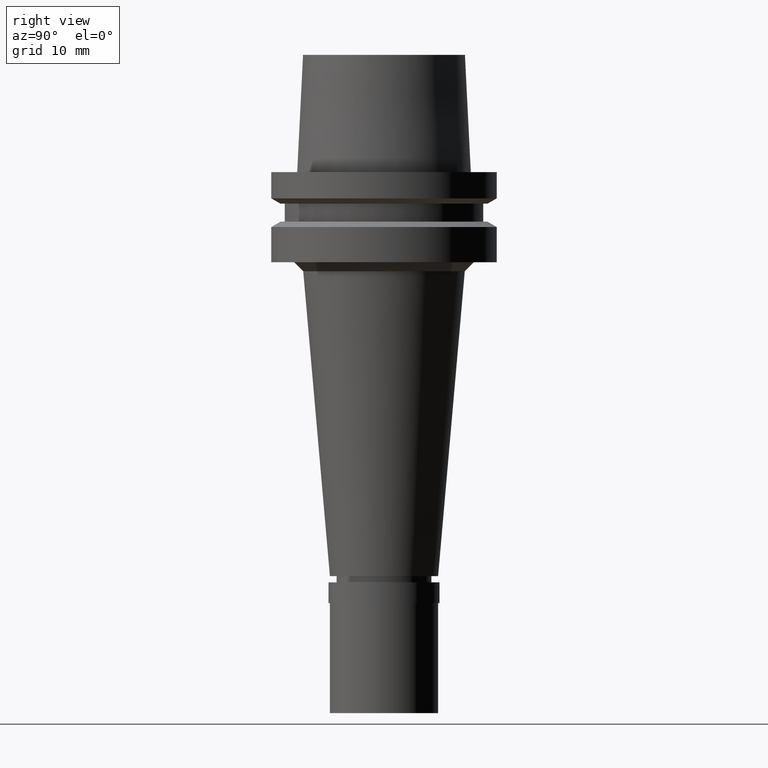
[diagram: clean part render]
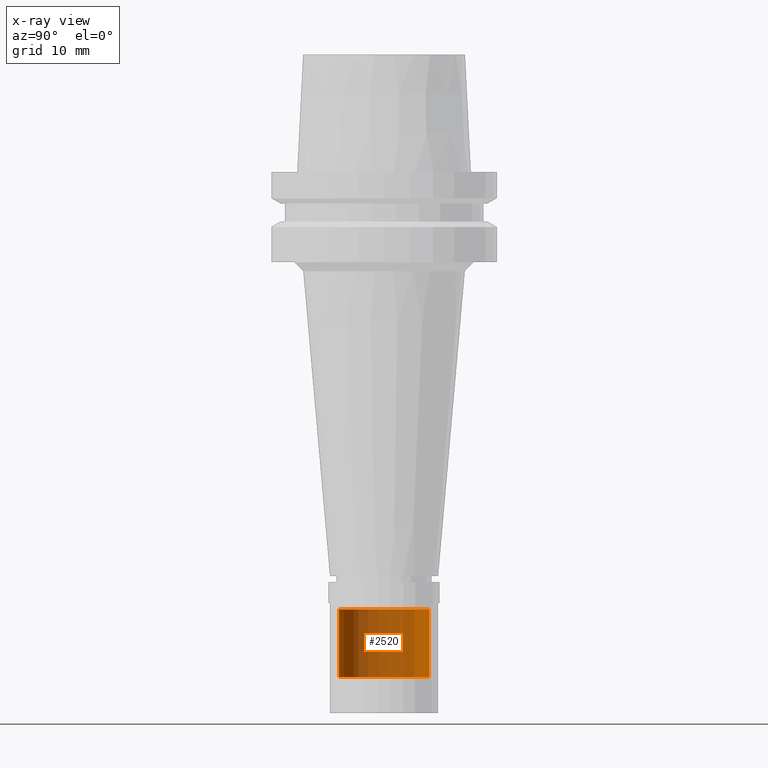
[diagram: x-ray — body ghosted, one internal face saturated and labeled with its STEP entity id]
A machine part, right view, then the same camera in x-ray: the body is ghosted and one INTERNAL B-rep face — a face not visible from any outside direction — is saturated and labeled: STEP entity #2520.
In plain terms, the highlighted cylindrical surface (partial cylindrical patch) has radius 5 mm, axis along (0, 0, 1).
Its self-contained STEP definition (entity closure, byte-faithful):
#14 = AXIS2_PLACEMENT_3D ( 'NONE', #1232, #1001, #385 ) ;
#36 = CARTESIAN_POINT ( 'NONE',  ( 0.0000000000000000000, 5.000000000000000000, -48.50000000000000000 ) ) ;
#79 = LINE ( 'NONE', #36, #2621 ) ;
#296 = CARTESIAN_POINT ( 'NONE',  ( 0.0000000000000000000, -5.000000000000000000, -56.00000000000000000 ) ) ;
#333 = FACE_OUTER_BOUND ( 'NONE', #387, .T. ) ;
#385 = DIRECTION ( 'NONE',  ( 0.0000000000000000000, 1.000000000000000000, 0.0000000000000000000 ) ) ;
#387 = EDGE_LOOP ( 'NONE', ( #598, #1341, #959, #1483 ) ) ;
#416 = VECTOR ( 'NONE', #2083, 1000.000000000000000 ) ;
#534 = CARTESIAN_POINT ( 'NONE',  ( 0.0000000000000000000, 0.0000000000000000000, -59.45000000000000284 ) ) ;
#584 = CARTESIAN_POINT ( 'NONE',  ( 0.0000000000000000000, 5.000000000000000000, -56.00000000000000000 ) ) ;
#598 = ORIENTED_EDGE ( 'NONE', *, *, #1408, .T. ) ;
#634 = VERTEX_POINT ( 'NONE', #1765 ) ;
#959 = ORIENTED_EDGE ( 'NONE', *, *, #2185, .T. ) ;
#969 = CYLINDRICAL_SURFACE ( 'NONE', #1058, 5.000000000000000000 ) ;
#1001 = DIRECTION ( 'NONE',  ( 0.0000000000000000000, 0.0000000000000000000, 1.000000000000000000 ) ) ;
#1058 = AXIS2_PLACEMENT_3D ( 'NONE', #534, #1170, #1974 ) ;
#1074 = VERTEX_POINT ( 'NONE', #1314 ) ;
#1170 = DIRECTION ( 'NONE',  ( 0.0000000000000000000, 0.0000000000000000000, 1.000000000000000000 ) ) ;
#1232 = CARTESIAN_POINT ( 'NONE',  ( 0.0000000000000000000, 0.0000000000000000000, -56.00000000000000000 ) ) ;
#1241 = CIRCLE ( 'NONE', #1409, 5.000000000000000000 ) ;
#1314 = CARTESIAN_POINT ( 'NONE',  ( 0.0000000000000000000, -5.000000000000000000, -48.50000000000000000 ) ) ;
#1341 = ORIENTED_EDGE ( 'NONE', *, *, #1468, .F. ) ;
#1408 = EDGE_CURVE ( 'NONE', #2298, #2116, #1884, .T. ) ;
#1409 = AXIS2_PLACEMENT_3D ( 'NONE', #1985, #2389, #2210 ) ;
#1468 = EDGE_CURVE ( 'NONE', #1074, #2116, #1916, .T. ) ;
#1483 = ORIENTED_EDGE ( 'NONE', *, *, #2689, .T. ) ;
#1514 = CARTESIAN_POINT ( 'NONE',  ( 0.0000000000000000000, -5.000000000000000000, -48.50000000000000000 ) ) ;
#1765 = CARTESIAN_POINT ( 'NONE',  ( 0.0000000000000000000, 5.000000000000000000, -48.50000000000000000 ) ) ;
#1884 = CIRCLE ( 'NONE', #14, 5.000000000000000000 ) ;
#1916 = LINE ( 'NONE', #1514, #416 ) ;
#1974 = DIRECTION ( 'NONE',  ( 0.0000000000000000000, 1.000000000000000000, 0.0000000000000000000 ) ) ;
#1985 = CARTESIAN_POINT ( 'NONE',  ( 0.0000000000000000000, 0.0000000000000000000, -48.50000000000000000 ) ) ;
#2083 = DIRECTION ( 'NONE',  ( 0.0000000000000000000, 0.0000000000000000000, -1.000000000000000000 ) ) ;
#2116 = VERTEX_POINT ( 'NONE', #296 ) ;
#2185 = EDGE_CURVE ( 'NONE', #1074, #634, #1241, .T. ) ;
#2210 = DIRECTION ( 'NONE',  ( 0.0000000000000000000, -1.000000000000000000, 0.0000000000000000000 ) ) ;
#2298 = VERTEX_POINT ( 'NONE', #584 ) ;
#2389 = DIRECTION ( 'NONE',  ( 0.0000000000000000000, 0.0000000000000000000, -1.000000000000000000 ) ) ;
#2520 = ADVANCED_FACE ( 'NONE', ( #333 ), #969, .T. ) ;
#2571 = DIRECTION ( 'NONE',  ( 0.0000000000000000000, 0.0000000000000000000, -1.000000000000000000 ) ) ;
#2621 = VECTOR ( 'NONE', #2571, 1000.000000000000000 ) ;
#2689 = EDGE_CURVE ( 'NONE', #634, #2298, #79, .T. ) ;